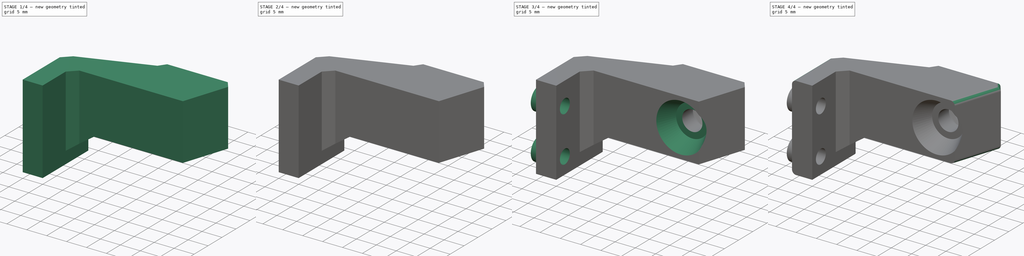
[diagram: build sequence overview — one tinted view per stage of 4, left to right]
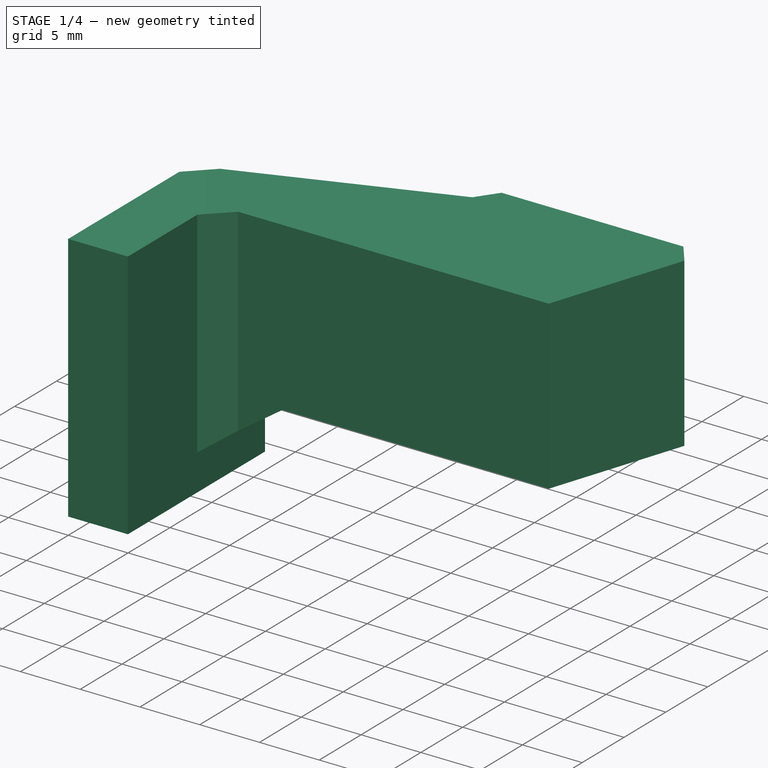
[diagram: stage 1 of 4 — iso view after this stage's code; geometry added in this stage tinted green]
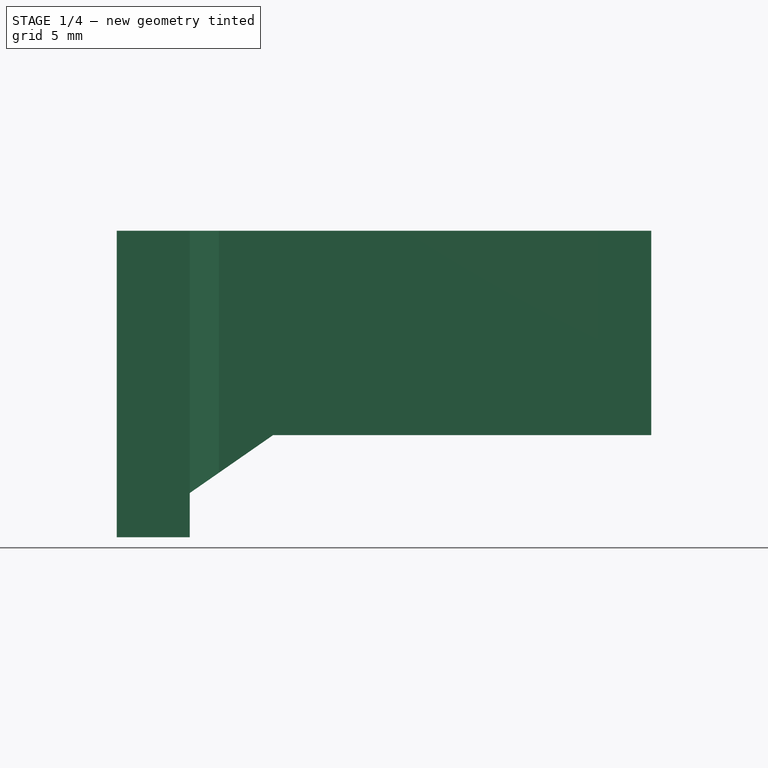
[diagram: stage 1 of 4 — front view after this stage's code; geometry added in this stage tinted green]
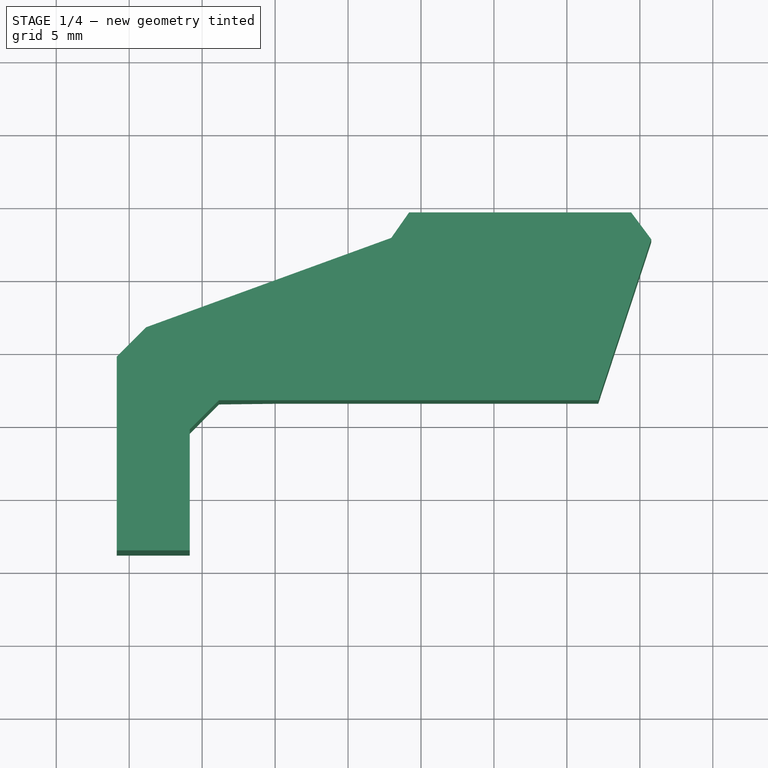
[diagram: stage 1 of 4 — top view after this stage's code; geometry added in this stage tinted green]
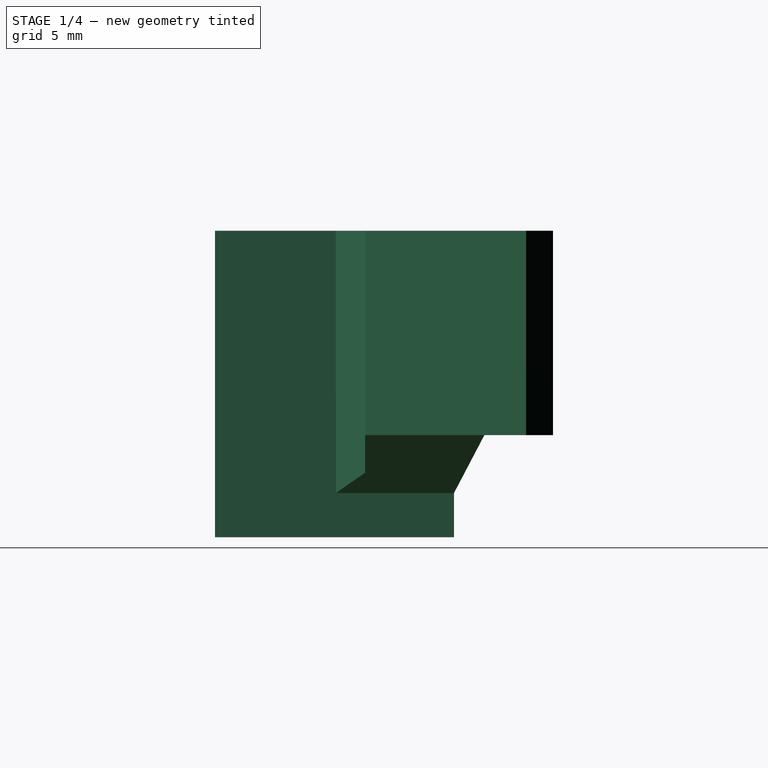
[diagram: stage 1 of 4 — right view after this stage's code; geometry added in this stage tinted green]
FCSTD DOCUMENT  (FreeCAD 0.22R35822 (Git))
Label: sprite extruder se ptfe mount redo
License: All rights reserved
LicenseURL: http://en.wikipedia.org/wiki/All_rights_reserved
objects: Sketcher::SketchObject×8, PartDesign::Pocket×3, PartDesign::Pad×2, PartDesign::Fillet×2, Image::ImagePlane×1, Part::Feature×1, PartDesign::Hole×1, PartDesign::SubtractiveLoft×1, PartDesign::Body×1
note: 28 computed .brp shape members not serialized (recipe doc carries the construction recipe); baked Part::Feature solids carry a one-line shape summary decoded from their .brp

FEATURE [Image::ImagePlane] Pasted_image  label="Pasted image"
  Placement = pos=(1,3.67,0) rot=(0,0,1;0rad)
  XSize = 114.168
  YSize = 152.221
FEATURE [Sketcher::SketchObject] Sketch
  FullyConstrained = false
  MapMode = 5
  Support = -> [XY_Plane]
  sketch-geometry (13):
    g0: LineSegment StartX=-23.85 StartY=11.4885 StartZ=0 EndX=2.15 EndY=11.4885 EndZ=0
    g1: LineSegment StartX=-30.85 StartY=1.2 StartZ=0 EndX=-30.85 EndY=14.4885 EndZ=0
    g2: LineSegment StartX=-30.85 StartY=14.4885 StartZ=0 EndX=-28.85 EndY=16.4885 EndZ=0
    g3: LineSegment StartX=-28.85 StartY=16.4885 StartZ=0 EndX=-12.0379 EndY=22.6187 EndZ=0
    g4: LineSegment StartX=-30.85 StartY=1.2 StartZ=0 EndX=-25.85 EndY=1.2 EndZ=0
    g5: LineSegment StartX=-25.85 StartY=9.48847 StartZ=0 EndX=-25.85 EndY=1.2 EndZ=0
    g6: LineSegment StartX=5.77814 StartY=22.53 StartZ=0 EndX=2.15 EndY=11.4885 EndZ=0
    g7: LineSegment StartX=-10.8116 StartY=24.37 StartZ=0 EndX=4.40114 EndY=24.37 EndZ=0
    g8: LineSegment StartX=4.40114 StartY=24.37 StartZ=0 EndX=5.77814 EndY=22.53 EndZ=0
    g9: LineSegment StartX=-10.8116 StartY=24.37 StartZ=0 EndX=-12.0379 EndY=22.6187 EndZ=0
    g10: LineSegment StartX=-2.35 StartY=26.3979 StartZ=0 EndX=-2.35 EndY=9.00526 EndZ=0
    g11: LineSegment StartX=-25.85 StartY=9.48847 StartZ=0 EndX=-23.85 EndY=11.4885 EndZ=0
    g12: LineSegment StartX=-23.85 StartY=11.4885 StartZ=0 EndX=-36.3403 EndY=23.9788 EndZ=0
  constraints (34):
    c: Coincident(g2,g1)
    c: Coincident(g3,g2)
    c: Horizontal(g7)
    c: Coincident(g6,g0)
    c: Coincident(g8,g7)
    c: Coincident(g8,g6)
    c: Coincident(g9,g7)
    c: Coincident(g9,g3)
    c: Coincident(g4,g1)
    c: Coincident(g4,g5)
    c: DistanceY(g-1,g6) = 22.53
    c: DistanceY(g-1,g7) = 24.37
    c: Horizontal(g4)
    c: DistanceX(g-1,g0) = 2.15
    c: Vertical(g1)
    c: Horizontal(g0)
    c: Angle(g8,g6) = 2.18166
    c: Angle(g6,g0) = 1.88827
    c: Angle(g9,g7) = 2.18166
    c: Vertical(g10)
    c: Distance(g10,g-2) = 2.35  'HoleToMiddle'
    c: DistanceX(g0,g0) = 26
    c: Coincident(g11,g5)
    c: Coincident(g11,g0)
    c: Vertical(g5)
    c: DistanceY(g-1,g4) = 1.2
    c: Equal(g2,g11)
    c: Distance(g4,g4) = 5
    c: Angle(g5,g11) = 2.35619
    c: Angle(g1,g2) = 2.35619
    c: Coincident(g12,g0)
    c: Angle(g12,g11) = 1.5708
    c: PointOnObject(g2,g12)
    c: DistanceX(g5,g0) = 2
FEATURE [PartDesign::Pad] Pad
  Direction = (0,0,1)
  Length = 21
  Length2 = 10
  Profile = -> Sketch
  ReferenceAxis = -> Sketch [N_Axis]
  Type = 0
FEATURE [Part::Feature] creality_sprite_extruder_se_ptfe_mount001
  Placement = pos=(46.3595,-45,20.194) rot=(0.999962,0,-0.008727;3.14159rad)
  shape: bbox 37.59 x 22.9 x 20.84 mm, 5644 faces, 0 solids (baked)
FEATURE [Sketcher::SketchObject] Sketch004
  ExternalGeometry = -> [Pad]
  FullyConstrained = false
  MapMode = 5
  Placement = pos=(0,24.37,0) rot=(0,0.707107,0.707107;3.14159rad)
  Support = -> [Pad]
  sketch-geometry (5):
    g0: LineSegment StartX=-5.89932 StartY=-5.3e-15 StartZ=0 EndX=-5.89932 EndY=7 EndZ=0
    g1: LineSegment StartX=-5.89932 StartY=7 StartZ=0 EndX=20.1328 EndY=7 EndZ=0
    g2: LineSegment StartX=20.1328 StartY=7 StartZ=0 EndX=25.85 EndY=3.02805 EndZ=0
    g3: LineSegment StartX=25.85 StartY=3.02805 StartZ=0 EndX=25.85 EndY=-5.3e-15 EndZ=0
    g4: LineSegment StartX=-5.89932 StartY=-5.3e-15 StartZ=0 EndX=25.85 EndY=-5.3e-15 EndZ=0
  constraints (11):
    c: Coincident(g1,g0)
    c: Horizontal(g1)
    c: Coincident(g3,g2)
    c: Coincident(g4,g0)
    c: Coincident(g2,g1)
    c: Vertical(g3)
    c: DistanceY(g0,g0) = 7
    c: Coincident(g4,g3)
    c: Horizontal(g4)
    c: Coincident(g-3,g3)
    c: Vertical(g0)
FEATURE [Sketcher::SketchObject] Sketch008
  FullyConstrained = true
  MapMode = 5
  Placement = pos=(0,24.37,0) rot=(0,0.707107,0.707107;3.14159rad)
  expr: Constraints[0] = Sketch.Constraints.HoleToMiddle
  sketch-geometry (1):
    g0: Circle CenterX=2.35 CenterY=14 CenterZ=0 NormalX=0 NormalY=0 NormalZ=1 AngleXU=0 Radius=5
  constraints (3):
    c: DistanceX(g-1,g0) = 2.35
    c: DistanceY(g-1,g0) = 14  'HoleDifferenceToMiddle'
    c: Diameter(g0) = 10
FEATURE [Sketcher::SketchObject] Sketch009
  FullyConstrained = true
  MapMode = 5
  Placement = pos=(0,19.37,-4e-15) rot=(0,0.707107,0.707107;3.14159rad)
  expr: Constraints[0] = Sketch.Constraints.HoleToMiddle
  expr: Constraints[1] = Sketch008.Constraints.HoleDifferenceToMiddle
  sketch-geometry (1):
    g0: Circle CenterX=2.35 CenterY=14 CenterZ=0 NormalX=0 NormalY=0 NormalZ=1 AngleXU=0 Radius=2.5
  constraints (3):
    c: DistanceX(g-1,g0) = 2.35
    c: DistanceY(g-1,g0) = 14
    c: Diameter(g0) = 5
FEATURE [PartDesign::Pocket] Pocket
  BaseFeature = -> Pad
  Direction = (0,-1,2e-16)
  Length = 5
  Length2 = 5
  Profile = -> Sketch004
  ReferenceAxis = -> Sketch004 [N_Axis]
  Type = 1
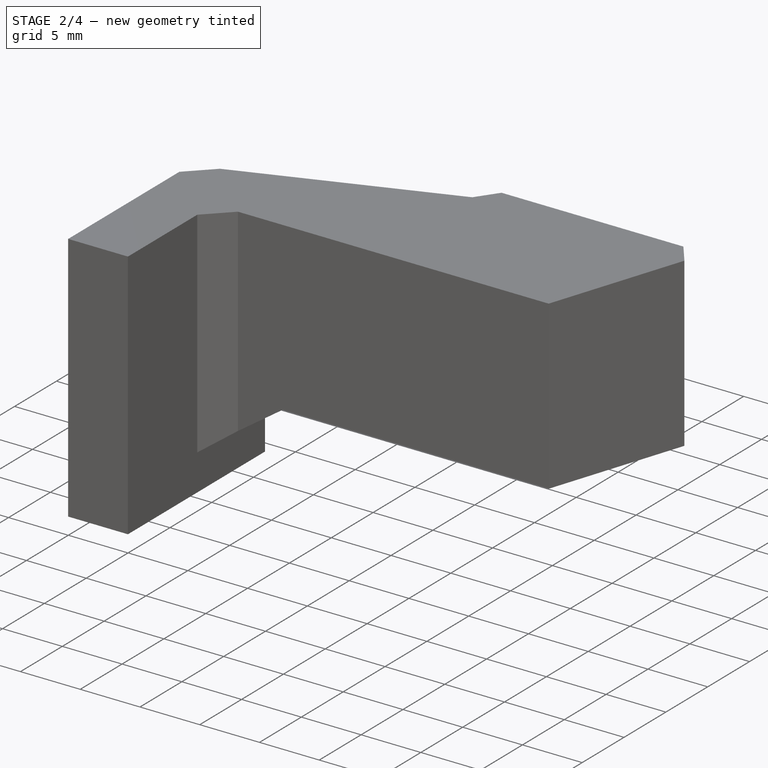
[diagram: stage 2 of 4 — iso view after this stage's code; geometry added in this stage tinted green]
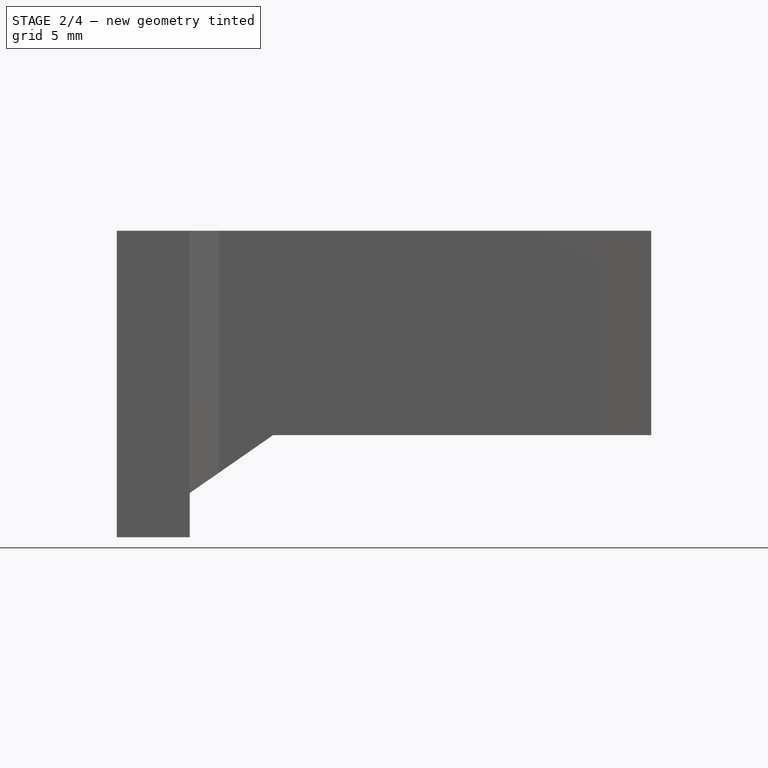
[diagram: stage 2 of 4 — front view after this stage's code; geometry added in this stage tinted green]
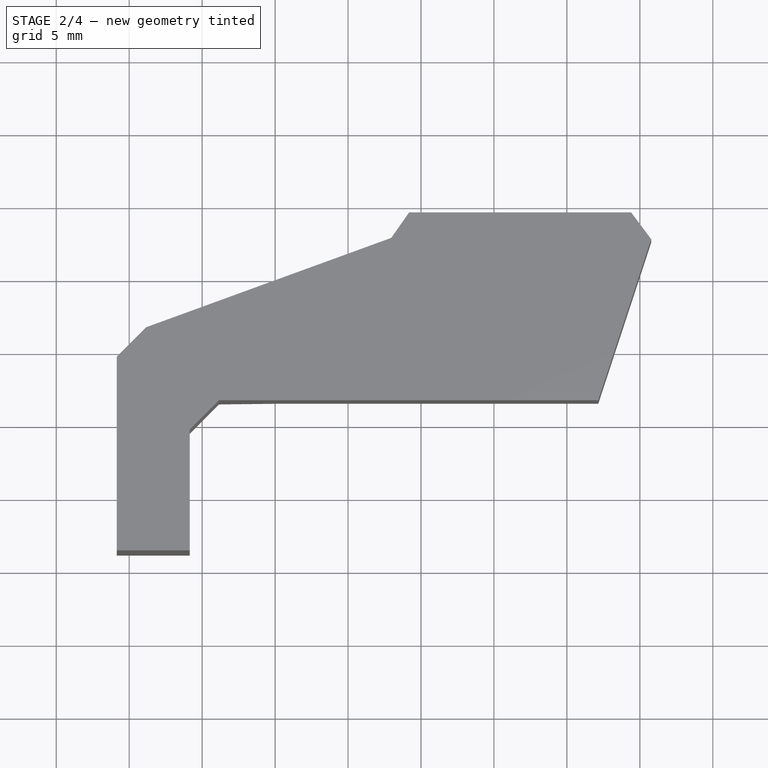
[diagram: stage 2 of 4 — top view after this stage's code; geometry added in this stage tinted green]
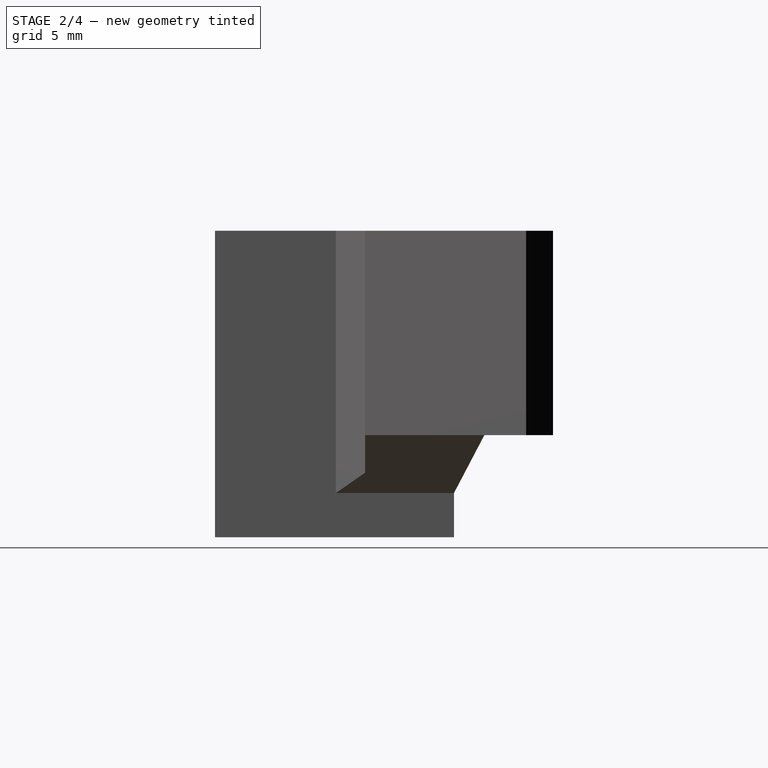
[diagram: stage 2 of 4 — right view after this stage's code; geometry added in this stage tinted green]
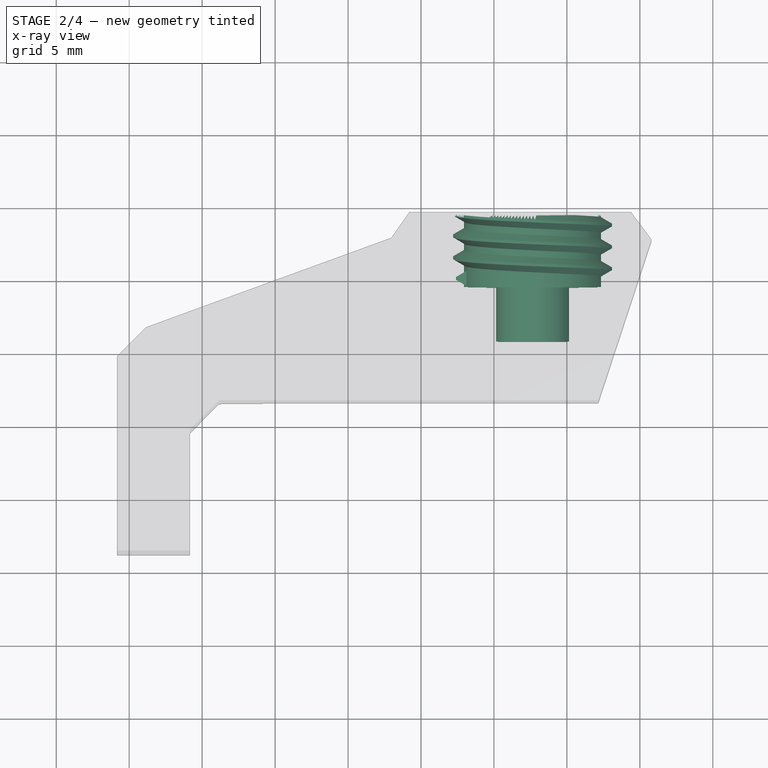
[diagram: stage 2 of 4 — x-ray composite at the top view; earlier geometry ghosted, this stage's added geometry solid]
FEATURE [PartDesign::Hole] Hole
  BaseFeature = -> Pocket
  CustomThreadClearance = 0.9
  Depth = 5
  DepthType = 0
  Diameter = 9.4
  DrillForDepth = false
  DrillPoint = 0
  DrillPointAngle = 118
  HoleCutCountersinkAngle = 90
  HoleCutCustomValues = false
  HoleCutDepth = 0
  HoleCutDiameter = 9.45
  HoleCutType = 0
  ModelThread = true
  Profile = -> Sketch008
  Tapered = false
  TaperedAngle = 90
  ThreadClass = 0
  ThreadDepth = 5
  ThreadDepthType = 0
  ThreadDirection = 0
  ThreadFit = 0
  ThreadSize = 18
  ThreadType = 1
  Threaded = true
  UseCustomThreadClearance = true
FEATURE [PartDesign::Pocket] Pocket001
  BaseFeature = -> Hole
  Direction = (0,-1,2e-16)
  Length = 3.75
  Length2 = 5
  Profile = -> Sketch009
  ReferenceAxis = -> Sketch009 [N_Axis]
  Type = 0
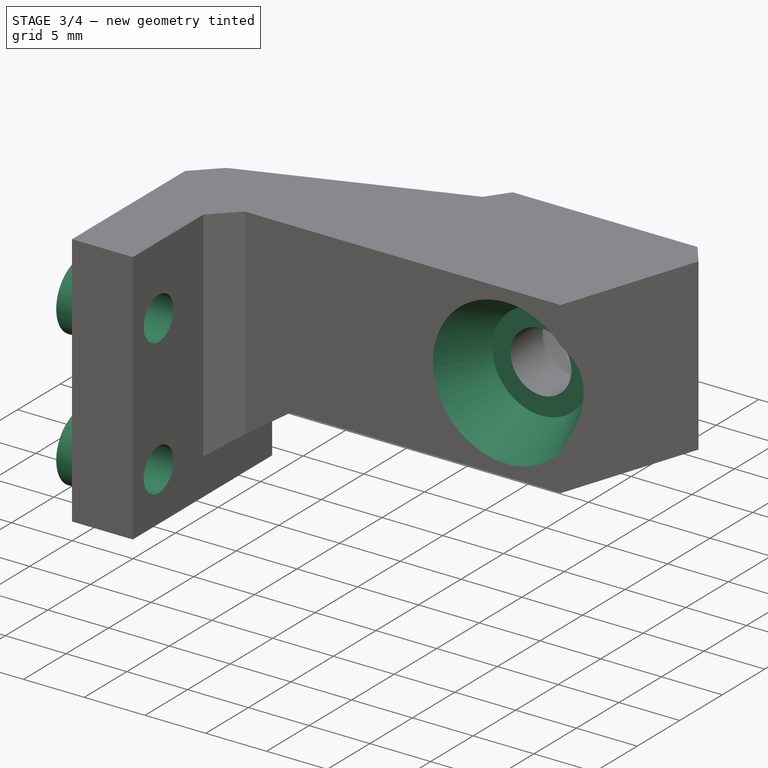
[diagram: stage 3 of 4 — iso view after this stage's code; geometry added in this stage tinted green]
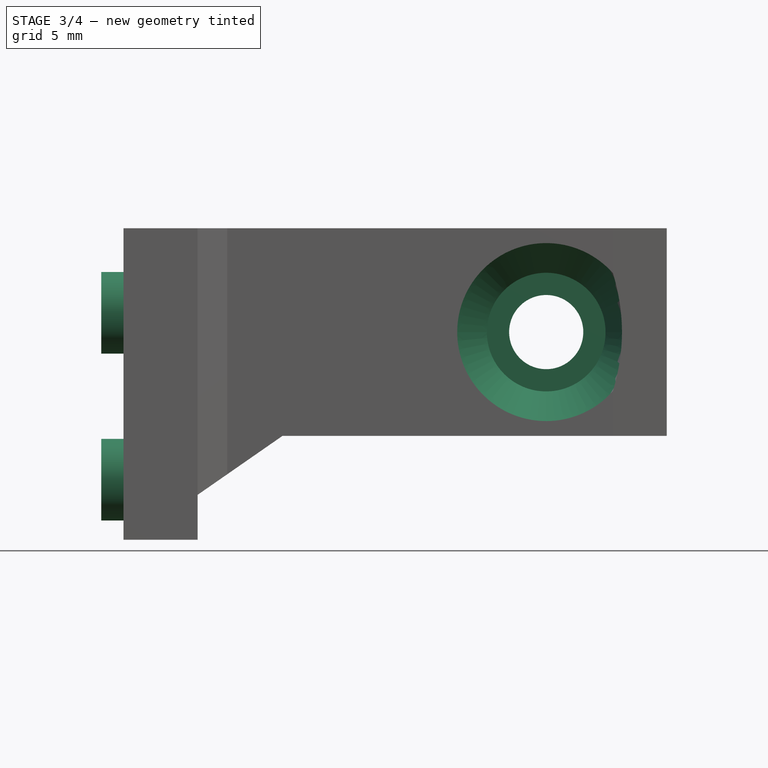
[diagram: stage 3 of 4 — front view after this stage's code; geometry added in this stage tinted green]
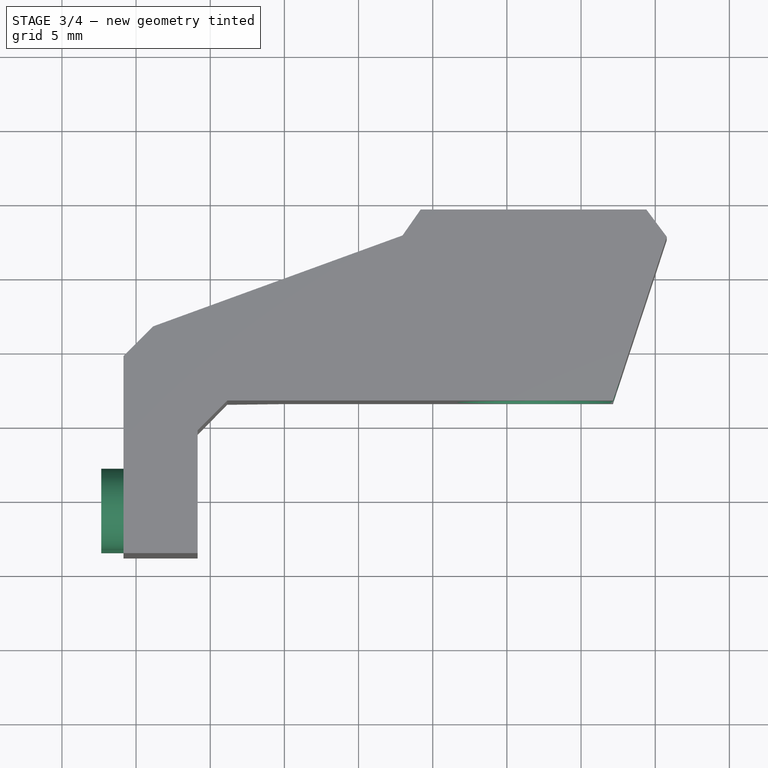
[diagram: stage 3 of 4 — top view after this stage's code; geometry added in this stage tinted green]
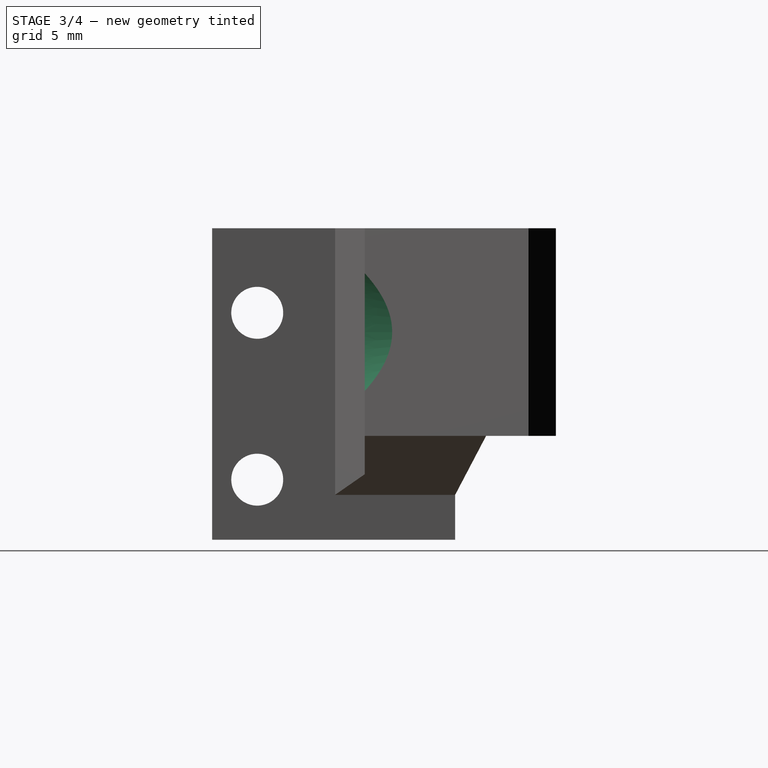
[diagram: stage 3 of 4 — right view after this stage's code; geometry added in this stage tinted green]
FEATURE [Sketcher::SketchObject] Sketch010
  FullyConstrained = true
  MapMode = 5
  Placement = pos=(0,15.62,0) rot=(0,0.707107,0.707107;3.14159rad)
  Support = -> [Pocket001]
  expr: Constraints[0] = Sketch.Constraints.HoleToMiddle
  expr: Constraints[1] = Sketch008.Constraints.HoleDifferenceToMiddle
  sketch-geometry (1):
    g0: Circle CenterX=2.35 CenterY=14 CenterZ=0 NormalX=0 NormalY=0 NormalZ=1 AngleXU=0 Radius=4
  constraints (3):
    c: DistanceX(g-1,g0) = 2.35
    c: DistanceY(g-1,g0) = 14
    c: Diameter(g0) = 8
FEATURE [Sketcher::SketchObject] Sketch011
  FullyConstrained = true
  MapMode = 5
  Placement = pos=(0,11.4885,0) rot=(1,0,0;1.5708rad)
  Support = -> [Pocket001]
  expr: Constraints[1] = Sketch.Constraints.HoleToMiddle
  expr: Constraints[2] = Sketch008.Constraints.HoleDifferenceToMiddle
  sketch-geometry (1):
    g0: Circle CenterX=-2.35 CenterY=14 CenterZ=0 NormalX=0 NormalY=0 NormalZ=1 AngleXU=0 Radius=6
  constraints (3):
    c: Diameter(g0) = 12
    c: DistanceX(g0,g-1) = 2.35
    c: DistanceY(g-1,g0) = 14
FEATURE [PartDesign::SubtractiveLoft] SubtractiveLoft
  BaseFeature = -> Pocket001
  Closed = false
  Profile = -> Sketch010
  Ruled = false
  Sections = -> [Sketch011]
FEATURE [Sketcher::SketchObject] Sketch012
  ExternalGeometry = -> [SubtractiveLoft]
  FullyConstrained = false
  MapMode = 5
  Placement = pos=(-30.85,0,0) rot=(0.57735,-0.57735,-0.57735;2.0944rad)
  Support = -> [SubtractiveLoft]
  sketch-geometry (3):
    g0: LineSegment StartX=-16.4885 StartY=22.15 StartZ=0 EndX=-1.2 EndY=22.15 EndZ=0
    g1: Circle CenterX=-4.23847 CenterY=15.3 CenterZ=0 NormalX=0 NormalY=0 NormalZ=1 AngleXU=0 Radius=2.75
    g2: Circle CenterX=-4.23847 CenterY=4.05 CenterZ=0 NormalX=0 NormalY=0 NormalZ=1 AngleXU=0 Radius=2.75
  constraints (8):
    c: Horizontal(g0)
    c: Diameter(g1) = 5.5
    c: DistanceY(g1,g0) = 6.85
    c: Equal(g1,g2)
    c: Vertical(g2,g1)
    c: DistanceX(g-3,g1) = 5.25
    c: DistanceY(g1,g-3) = 5.7
    c: DistanceY(g2,g1) = 11.25
FEATURE [PartDesign::Pad] Pad001
  BaseFeature = -> SubtractiveLoft
  Direction = (-1,0,0)
  Length = 1.5
  Length2 = 10
  Profile = -> Sketch012
  ReferenceAxis = -> Sketch012 [N_Axis]
  Type = 0
FEATURE [Sketcher::SketchObject] Sketch013
  ExternalGeometry = -> [SubtractiveLoft,Pad001]
  FullyConstrained = true
  MapMode = 5
  Placement = pos=(-32.35,0,0) rot=(0.57735,-0.57735,-0.57735;2.0944rad)
  Support = -> [Pad001]
  sketch-geometry (2):
    g0: Circle CenterX=-4.23847 CenterY=15.3 CenterZ=0 NormalX=0 NormalY=0 NormalZ=1 AngleXU=0 Radius=1.75
    g1: Circle CenterX=-4.23847 CenterY=4.05 CenterZ=0 NormalX=0 NormalY=0 NormalZ=1 AngleXU=0 Radius=1.75
  constraints (4):
    c: Coincident(g0,g-4)
    c: Coincident(g1,g-5)
    c: Equal(g1,g0)
    c: Diameter(g0) = 3.5
FEATURE [PartDesign::Pocket] Pocket002
  BaseFeature = -> Pad001
  Direction = (1,0,0)
  Length = 5
  Length2 = 5
  Profile = -> Sketch013
  ReferenceAxis = -> Sketch013 [N_Axis]
  Type = 1
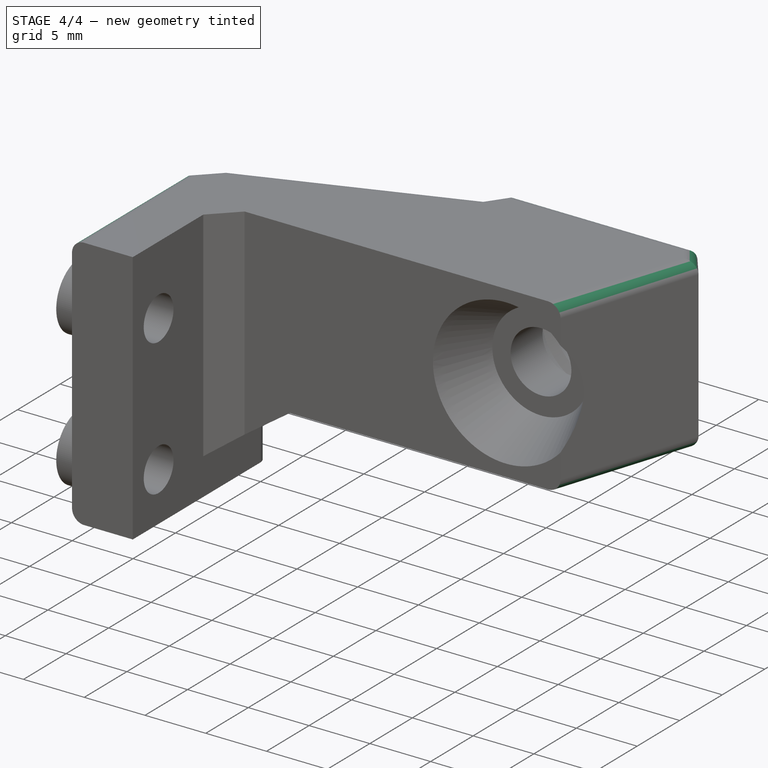
[diagram: stage 4 of 4 — iso view after this stage's code; geometry added in this stage tinted green]
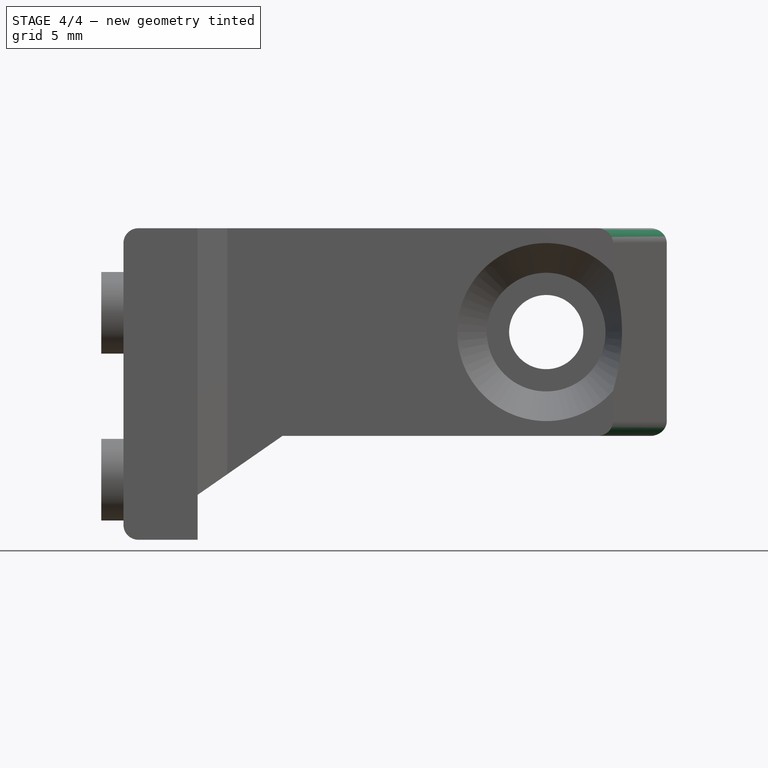
[diagram: stage 4 of 4 — front view after this stage's code; geometry added in this stage tinted green]
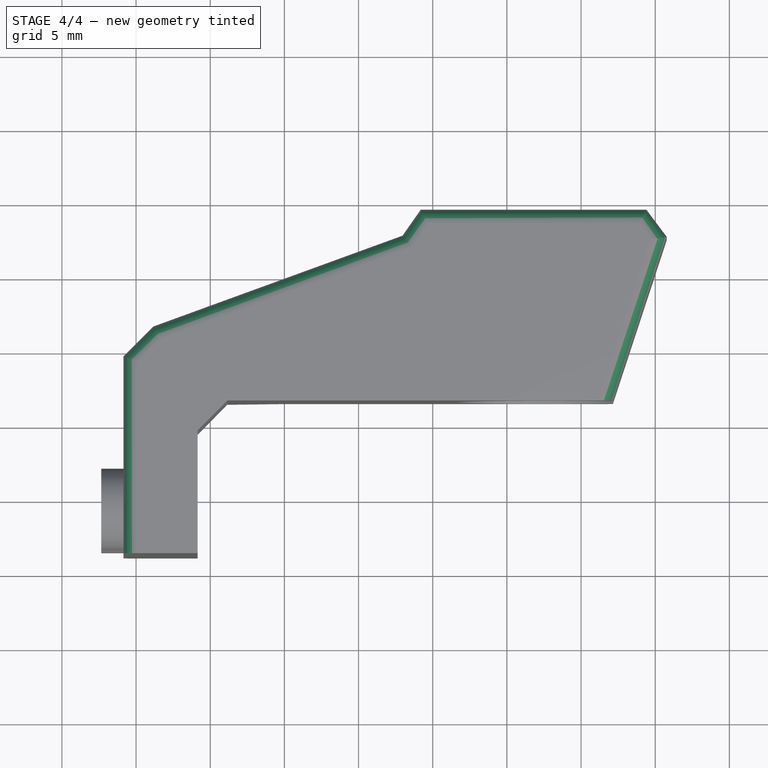
[diagram: stage 4 of 4 — top view after this stage's code; geometry added in this stage tinted green]
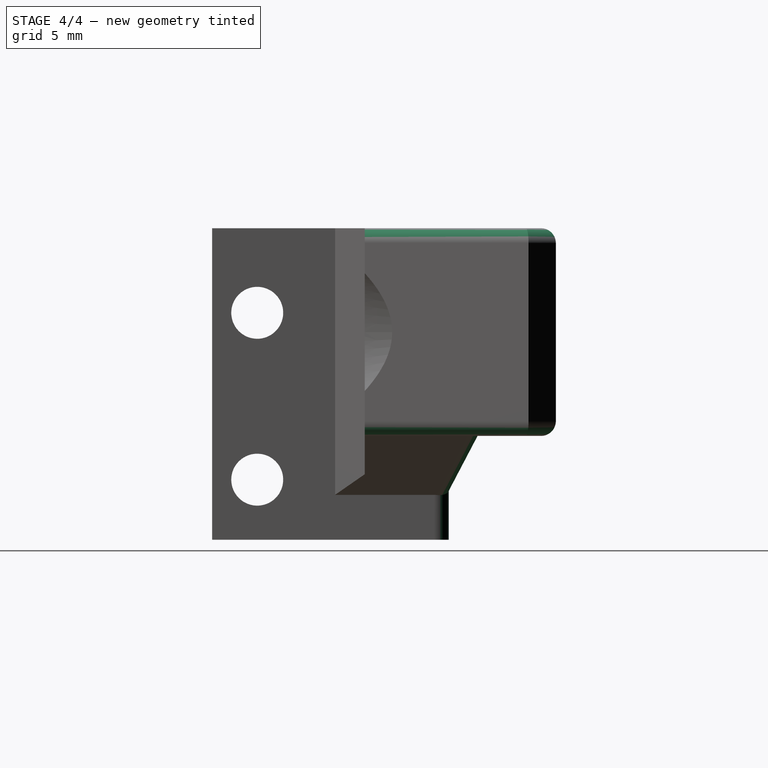
[diagram: stage 4 of 4 — right view after this stage's code; geometry added in this stage tinted green]
FEATURE [PartDesign::Fillet] Fillet
  Base = -> Pocket002 [Edge31]
  BaseFeature = -> Pocket002
  Radius = 1
  SupportTransform = false
  UseAllEdges = false
FEATURE [PartDesign::Fillet] Fillet001
  Base = -> Fillet [Edge36,Edge6,Edge4,Edge20,Edge28,Edge27,Edge30,Edge40,Edge39,Edge29,Edge44,Edge37,Edge43,Edge18,Edge42,Edge41]
  BaseFeature = -> Fillet
  Radius = 1
  SupportTransform = false
  UseAllEdges = false
FEATURE [PartDesign::Body] Body
  Group = -> [Sketch,Pad,Sketch004,Sketch008,Sketch009,Sketch010,Sketch011,Pocket,Hole,Pocket001,Sketch012,SubtractiveLoft,Sketch013,Pad001,Pocket002,Fillet,Fillet001]
  Origin = -> Origin
  Placement = pos=(0,0,0) rot=(1,0,0;-3.14159rad)
  Tip = -> Fillet001
  expr: .Placement.Rotation.Angle = -180
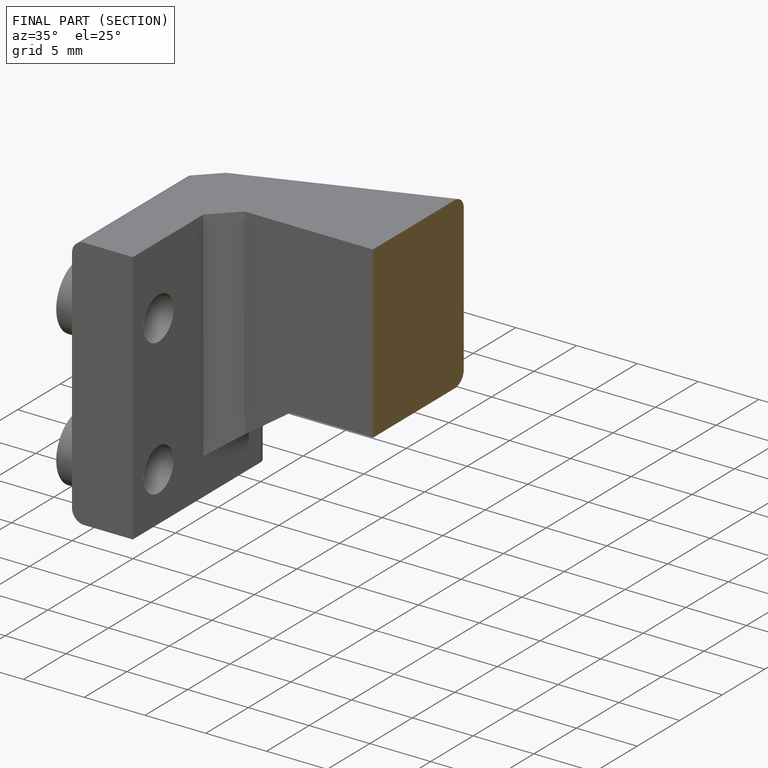
[diagram: finished part — half-section view (interior)]
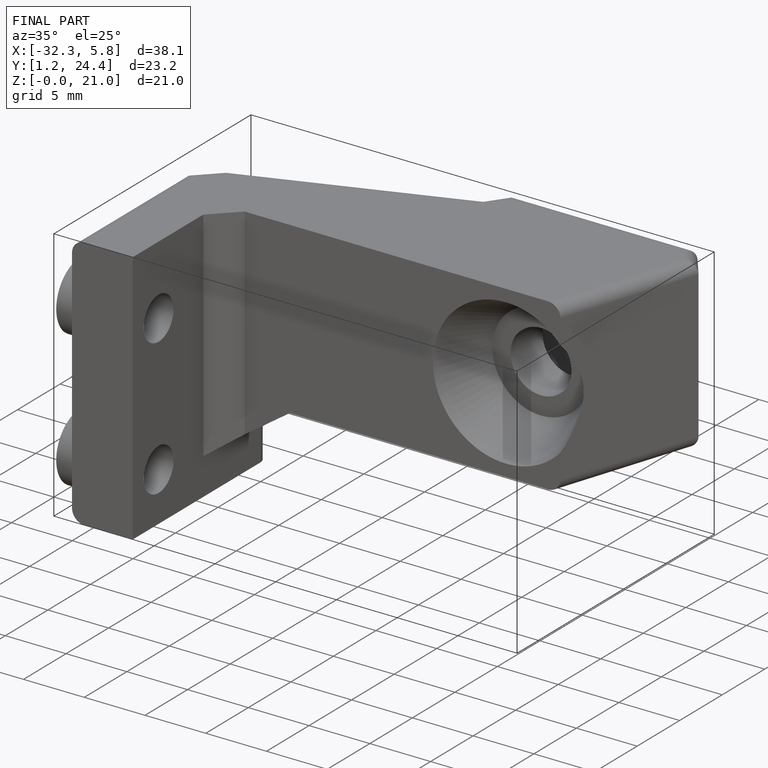
[diagram: finished part — iso view with bounding-box wireframe]
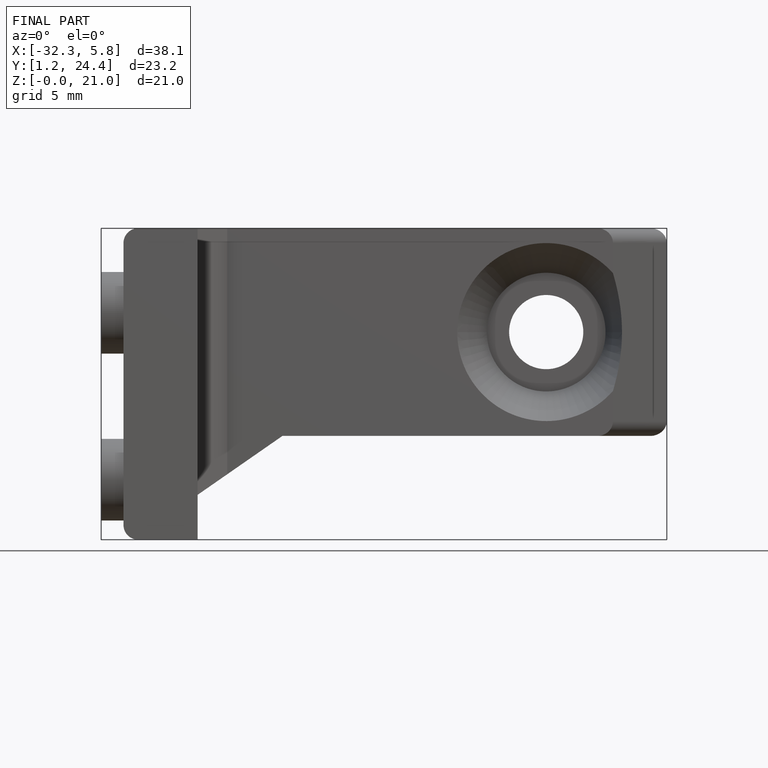
[diagram: finished part — front view with bounding-box wireframe]
